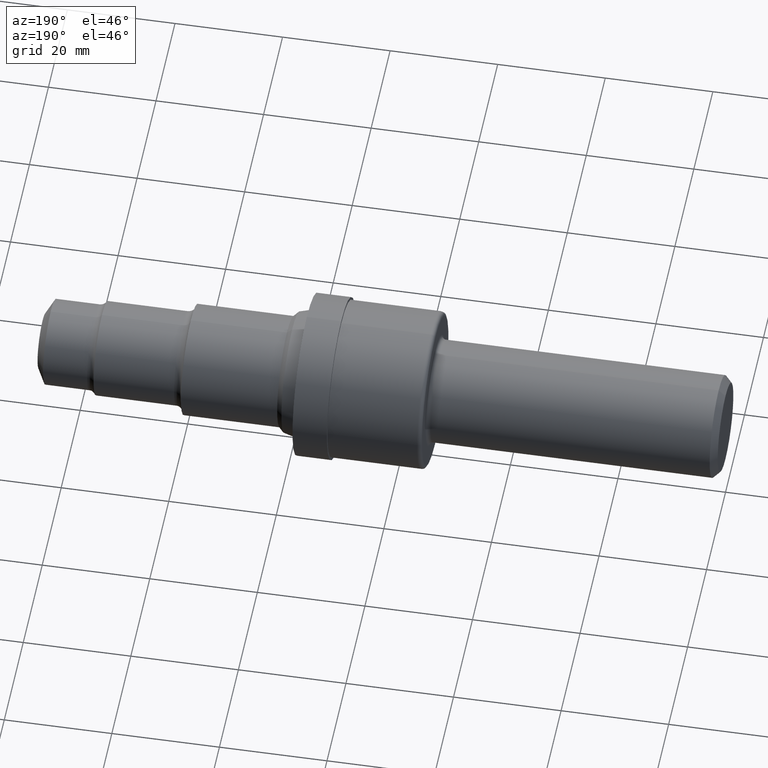
[diagram: clean part render]
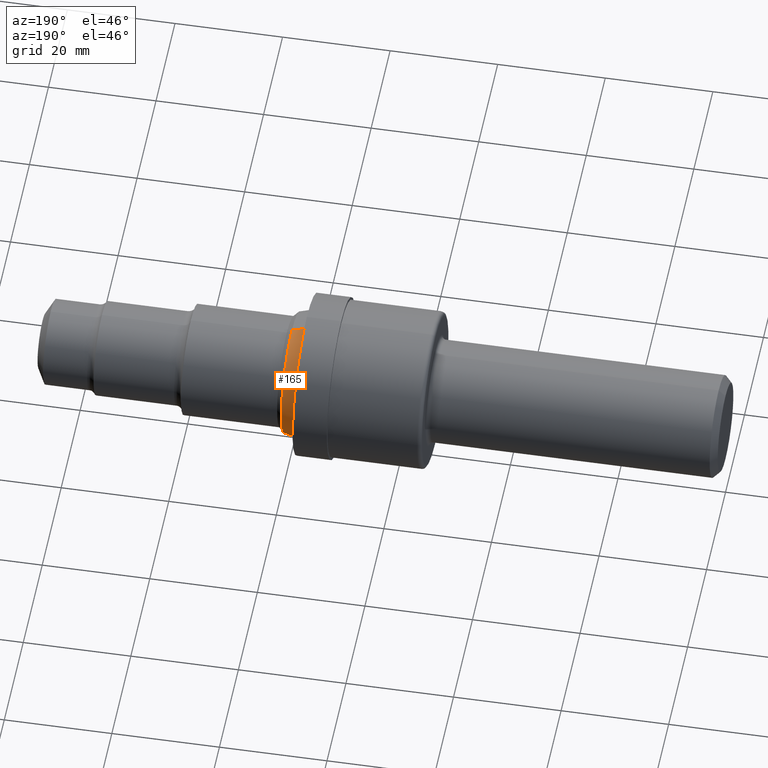
[diagram: same view with one face highlighted and labeled with its STEP entity id]
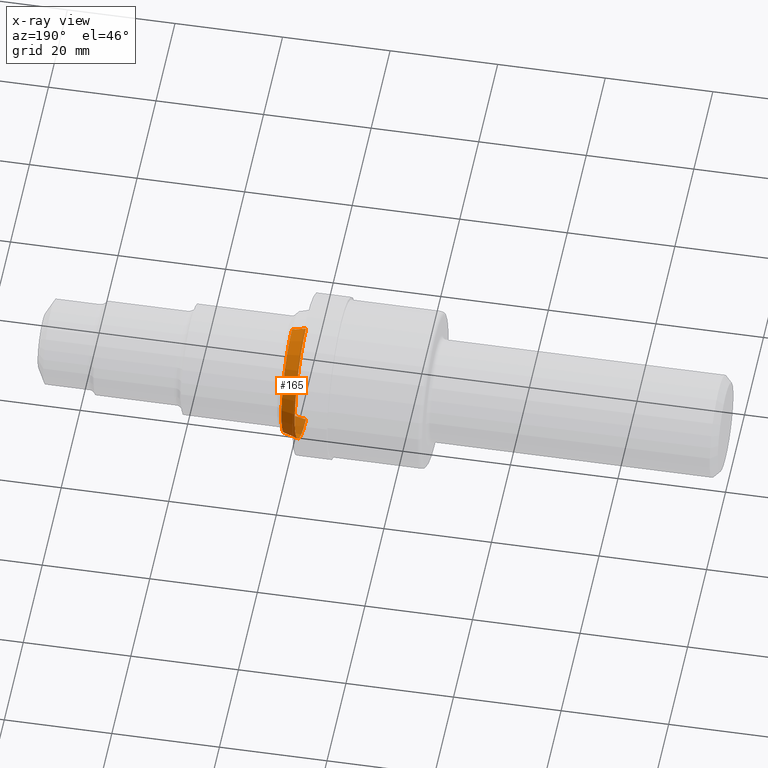
[diagram: x-ray of the same camera — body ghosted, the highlighted face saturated]
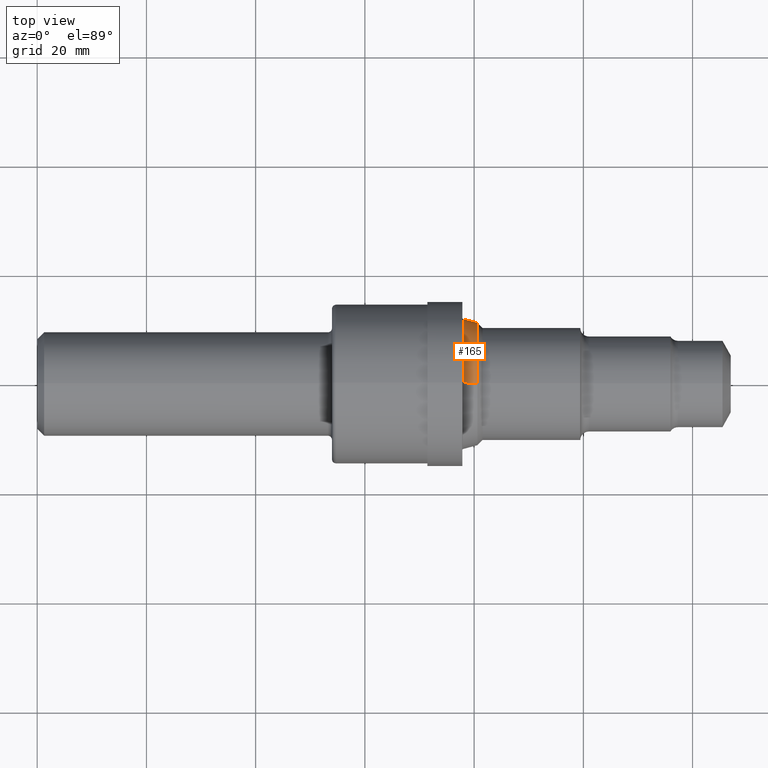
[diagram: same view with one face highlighted and labeled with its STEP entity id]
A machine part, auxiliary view. The second image highlights one B-rep face of the part: STEP entity #165.
The next image is the same camera in x-ray: the body ghosted, the highlighted face saturated — about 9% of this face is hidden behind the body in this view.
A second angle (top view) of the same face is appended — the face is thin or edge-on in the first view.
In plain terms, the highlighted conical surface has half-angle 15 deg.
Its self-contained STEP definition (entity closure, byte-faithful):
#7 = DIRECTION ( 'NONE',  ( -0.9659258262890689783, 0.0000000000000000000, 0.2588190451025179639 ) ) ;
#11 = EDGE_CURVE ( 'NONE', #188, #801, #167, .T. ) ;
#12 = CARTESIAN_POINT ( 'NONE',  ( 3.070558857161731048, 5.812574542524129798E-17, -0.4710105087126742474 ) ) ;
#25 = ORIENTED_EDGE ( 'NONE', *, *, #383, .F. ) ;
#45 = CONICAL_SURFACE ( 'NONE', #870, 0.4435614872174390433, 0.2617993877991466878 ) ;
#59 = ORIENTED_EDGE ( 'NONE', *, *, #11, .F. ) ;
#72 = ORIENTED_EDGE ( 'NONE', *, *, #654, .T. ) ;
#79 = CARTESIAN_POINT ( 'NONE',  ( 3.173000000000000487, 0.0000000000000000000, 0.0000000000000000000 ) ) ;
#102 = CARTESIAN_POINT ( 'NONE',  ( 3.173000000000000487, 5.600138337028097266E-17, -0.4435614872174390433 ) ) ;
#114 = DIRECTION ( 'NONE',  ( -1.000000000000000000, -0.0000000000000000000, -0.0000000000000000000 ) ) ;
#115 = LINE ( 'NONE', #502, #481 ) ;
#116 = EDGE_CURVE ( 'NONE', #470, #276, #115, .T. ) ;
#131 = DIRECTION ( 'NONE',  ( -1.000000000000000000, -0.0000000000000000000, -0.0000000000000000000 ) ) ;
#144 = AXIS2_PLACEMENT_3D ( 'NONE', #692, #258, #769 ) ;
#160 = CIRCLE ( 'NONE', #465, 0.4435614872174390433 ) ;
#165 = ADVANCED_FACE ( 'NONE', ( #527 ), #45, .T. ) ;
#167 = LINE ( 'NONE', #311, #555 ) ;
#188 = VERTEX_POINT ( 'NONE', #298 ) ;
#258 = DIRECTION ( 'NONE',  ( -1.000000000000000000, -0.0000000000000000000, -0.0000000000000000000 ) ) ;
#264 = CARTESIAN_POINT ( 'NONE',  ( 3.070558857161731048, 0.0000000000000000000, 0.4710105087126742474 ) ) ;
#276 = VERTEX_POINT ( 'NONE', #12 ) ;
#298 = CARTESIAN_POINT ( 'NONE',  ( 3.173000000000000487, 0.0000000000000000000, 0.4435614872174390433 ) ) ;
#311 = CARTESIAN_POINT ( 'NONE',  ( 3.173000000000000487, 0.0000000000000000000, 0.4435614872174390433 ) ) ;
#327 = ORIENTED_EDGE ( 'NONE', *, *, #116, .T. ) ;
#383 = EDGE_CURVE ( 'NONE', #801, #276, #736, .T. ) ;
#434 = DIRECTION ( 'NONE',  ( -0.9659258262890689783, 3.169619151431731045E-17, -0.2588190451025179639 ) ) ;
#465 = AXIS2_PLACEMENT_3D ( 'NONE', #932, #114, #635 ) ;
#470 = VERTEX_POINT ( 'NONE', #102 ) ;
#481 = VECTOR ( 'NONE', #434, 39.37007874015749564 ) ;
#502 = CARTESIAN_POINT ( 'NONE',  ( 3.173000000000000487, 5.432061555458763833E-17, -0.4435614872174390433 ) ) ;
#527 = FACE_OUTER_BOUND ( 'NONE', #530, .T. ) ;
#530 = EDGE_LOOP ( 'NONE', ( #72, #327, #25, #59 ) ) ;
#555 = VECTOR ( 'NONE', #7, 39.37007874015749564 ) ;
#635 = DIRECTION ( 'NONE',  ( 0.0000000000000000000, 0.0000000000000000000, 1.000000000000000000 ) ) ;
#654 = EDGE_CURVE ( 'NONE', #188, #470, #160, .T. ) ;
#692 = CARTESIAN_POINT ( 'NONE',  ( 3.070558857161731048, 0.0000000000000000000, 0.0000000000000000000 ) ) ;
#736 = CIRCLE ( 'NONE', #144, 0.4710105087126742474 ) ;
#769 = DIRECTION ( 'NONE',  ( 0.0000000000000000000, 0.0000000000000000000, 1.000000000000000000 ) ) ;
#801 = VERTEX_POINT ( 'NONE', #264 ) ;
#862 = DIRECTION ( 'NONE',  ( 0.0000000000000000000, 0.0000000000000000000, 1.000000000000000000 ) ) ;
#870 = AXIS2_PLACEMENT_3D ( 'NONE', #79, #131, #862 ) ;
#932 = CARTESIAN_POINT ( 'NONE',  ( 3.173000000000000487, 0.0000000000000000000, 0.0000000000000000000 ) ) ;